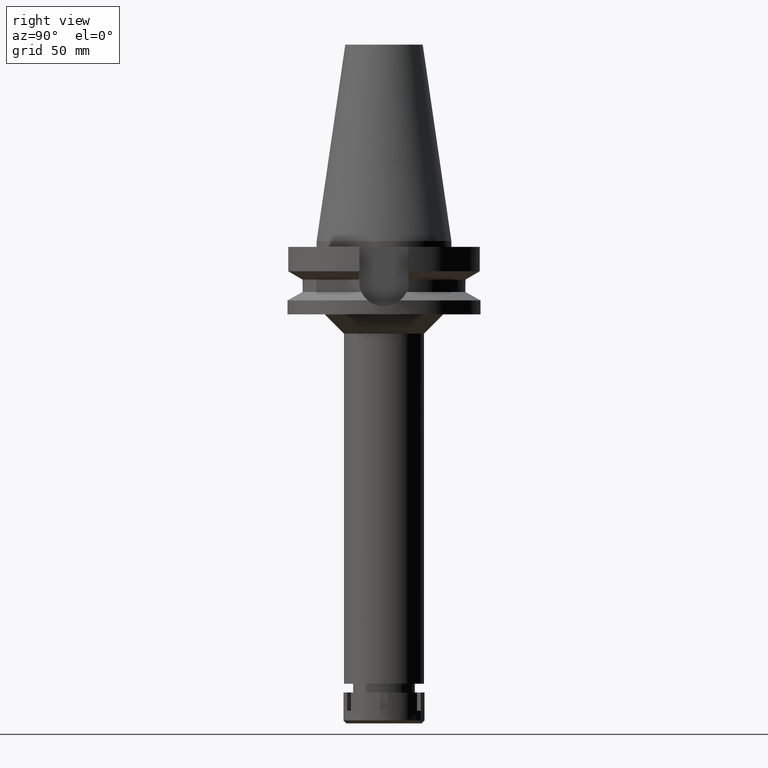
[diagram: clean part render]
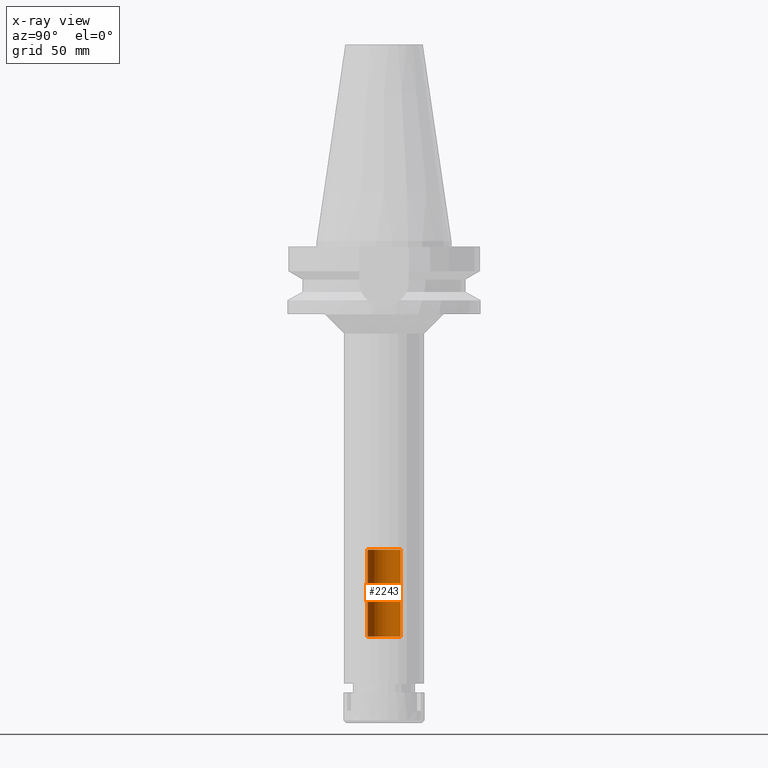
[diagram: x-ray — body ghosted, one internal face saturated and labeled with its STEP entity id]
A machine part, right view, then the same camera in x-ray: the body is ghosted and one INTERNAL B-rep face — a face not visible from any outside direction — is saturated and labeled: STEP entity #2243.
In plain terms, the highlighted cylindrical surface (edge-blend (fillet) strip) has radius 8.65 mm, axis along (0, 0, -1).
Its self-contained STEP definition (entity closure, byte-faithful):
#127 = EDGE_LOOP ( 'NONE', ( #287, #1657, #956, #1534 ) ) ;
#186 = EDGE_CURVE ( 'NONE', #2686, #1099, #1452, .T. ) ;
#287 = ORIENTED_EDGE ( 'NONE', *, *, #2622, .T. ) ;
#564 = VECTOR ( 'NONE', #2632, 1000.000000000000000 ) ;
#630 = CARTESIAN_POINT ( 'NONE',  ( 0.0000000000000000000, 2.681854025452999794E-14, -205.0000000000000000 ) ) ;
#690 = LINE ( 'NONE', #2324, #564 ) ;
#956 = ORIENTED_EDGE ( 'NONE', *, *, #2507, .T. ) ;
#978 = DIRECTION ( 'NONE',  ( 0.0000000000000000000, 0.0000000000000000000, -1.000000000000000000 ) ) ;
#980 = AXIS2_PLACEMENT_3D ( 'NONE', #630, #978, #2844 ) ;
#1057 = CARTESIAN_POINT ( 'NONE',  ( 0.0000000000000000000, 2.681854025452999794E-14, 118.9899999999999949 ) ) ;
#1099 = VERTEX_POINT ( 'NONE', #2843 ) ;
#1157 = AXIS2_PLACEMENT_3D ( 'NONE', #1057, #1441, #3348 ) ;
#1269 = CARTESIAN_POINT ( 'NONE',  ( 0.0000000000000000000, -8.650000000000000355, -160.0000000000000000 ) ) ;
#1272 = DIRECTION ( 'NONE',  ( 0.0000000000000000000, 1.000000000000000000, 0.0000000000000000000 ) ) ;
#1308 = CARTESIAN_POINT ( 'NONE',  ( 0.0000000000000000000, 2.681854025452999794E-14, -160.0000000000000000 ) ) ;
#1441 = DIRECTION ( 'NONE',  ( 0.0000000000000000000, 0.0000000000000000000, -1.000000000000000000 ) ) ;
#1452 = LINE ( 'NONE', #1471, #3347 ) ;
#1471 = CARTESIAN_POINT ( 'NONE',  ( 0.0000000000000000000, 8.650000000000000355, -205.0000000000000000 ) ) ;
#1534 = ORIENTED_EDGE ( 'NONE', *, *, #186, .T. ) ;
#1657 = ORIENTED_EDGE ( 'NONE', *, *, #2020, .F. ) ;
#1742 = DIRECTION ( 'NONE',  ( 0.0000000000000000000, 0.0000000000000000000, 1.000000000000000000 ) ) ;
#1876 = FACE_OUTER_BOUND ( 'NONE', #127, .T. ) ;
#2020 = EDGE_CURVE ( 'NONE', #3311, #3245, #690, .T. ) ;
#2175 = DIRECTION ( 'NONE',  ( 0.0000000000000000000, 0.0000000000000000000, 1.000000000000000000 ) ) ;
#2243 = ADVANCED_FACE ( 'NONE', ( #1876 ), #2975, .F. ) ;
#2252 = CIRCLE ( 'NONE', #2599, 8.650000000000000355 ) ;
#2324 = CARTESIAN_POINT ( 'NONE',  ( 0.0000000000000000000, -8.650000000000000355, -205.0000000000000000 ) ) ;
#2375 = CARTESIAN_POINT ( 'NONE',  ( 0.0000000000000000000, 8.650000000000000355, -205.0000000000000000 ) ) ;
#2442 = CARTESIAN_POINT ( 'NONE',  ( 0.0000000000000000000, -8.650000000000000355, -205.0000000000000000 ) ) ;
#2507 = EDGE_CURVE ( 'NONE', #3311, #2686, #2543, .T. ) ;
#2543 = CIRCLE ( 'NONE', #980, 8.650000000000000355 ) ;
#2599 = AXIS2_PLACEMENT_3D ( 'NONE', #1308, #2175, #1272 ) ;
#2622 = EDGE_CURVE ( 'NONE', #1099, #3245, #2252, .T. ) ;
#2632 = DIRECTION ( 'NONE',  ( 0.0000000000000000000, 0.0000000000000000000, 1.000000000000000000 ) ) ;
#2686 = VERTEX_POINT ( 'NONE', #2375 ) ;
#2843 = CARTESIAN_POINT ( 'NONE',  ( 0.0000000000000000000, 8.650000000000000355, -160.0000000000000000 ) ) ;
#2844 = DIRECTION ( 'NONE',  ( 0.0000000000000000000, -1.000000000000000000, 0.0000000000000000000 ) ) ;
#2975 = CYLINDRICAL_SURFACE ( 'NONE', #1157, 8.650000000000000355 ) ;
#3245 = VERTEX_POINT ( 'NONE', #1269 ) ;
#3311 = VERTEX_POINT ( 'NONE', #2442 ) ;
#3347 = VECTOR ( 'NONE', #1742, 1000.000000000000000 ) ;
#3348 = DIRECTION ( 'NONE',  ( 0.0000000000000000000, -1.000000000000000000, 0.0000000000000000000 ) ) ;